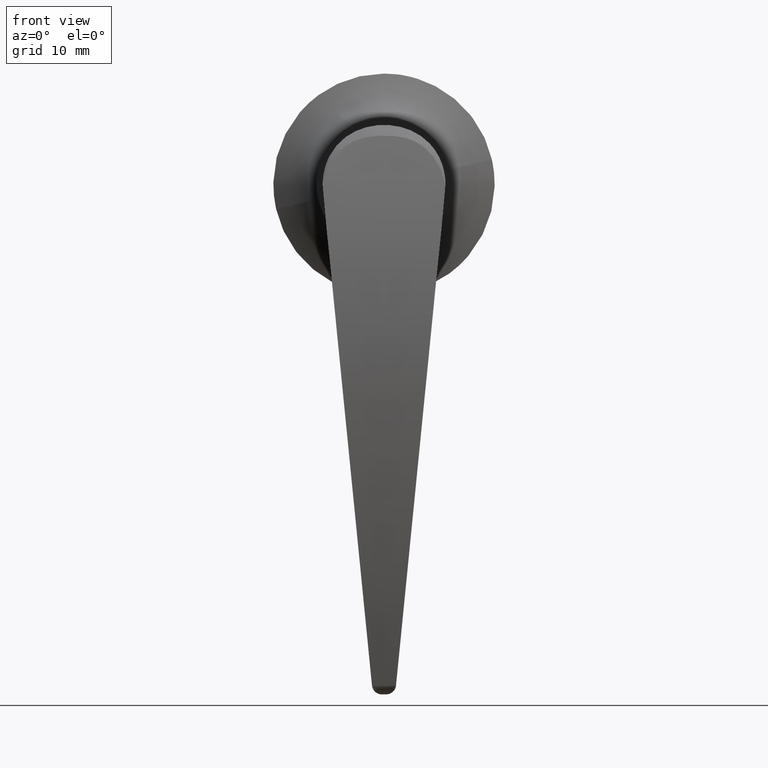
[diagram: clean part render]
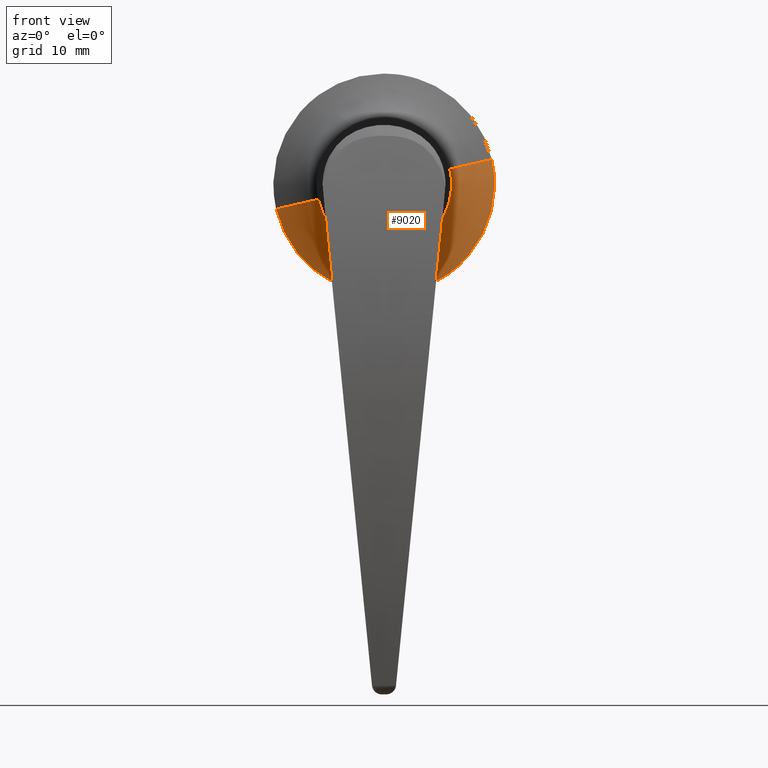
[diagram: same view with one face highlighted and labeled with its STEP entity id]
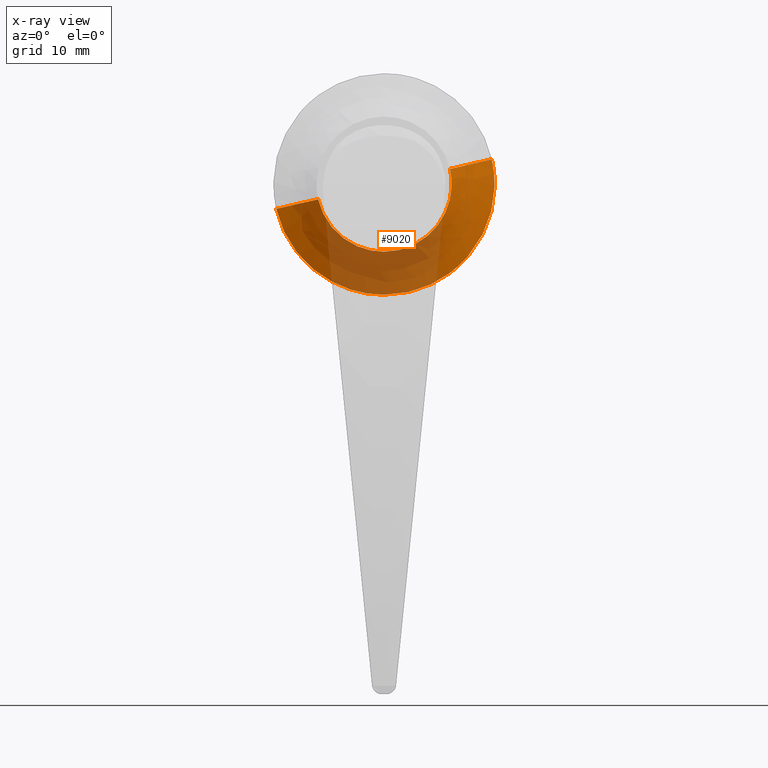
[diagram: x-ray of the same camera — body ghosted, the highlighted face saturated]
A machine part, front view. The second image highlights one B-rep face of the part: STEP entity #9020.
The next image is the same camera in x-ray: the body ghosted, the highlighted face saturated — about 43% of this face is hidden behind the body in this view.
In plain terms, the highlighted face is a freeform B-spline surface patch.
Its self-contained STEP definition (entity closure, byte-faithful):
#8740=CARTESIAN_POINT('',(5.499475657324954,17.541483709951599,-4.036873697337593));
#8741=VERTEX_POINT('',#8740);
#8796=CARTESIAN_POINT('',(5.499475657380819,-13.687309914272859,-11.690061903627051));
#8797=VERTEX_POINT('',#8796);
#8803=CARTESIAN_POINT('',(5.499475657380540,0.0,-18.0));
#8804=VERTEX_POINT('',#8803);
#8805=CARTESIAN_POINT('',(5.499475657380540,0.0,-18.0));
#8806=CARTESIAN_POINT('',(5.499475657380541,-8.298116024703120,-18.000000000000004));
#8807=CARTESIAN_POINT('',(5.499475657380819,-13.687309914272861,-11.690061903627047));
#8815=(BOUNDED_CURVE()B_SPLINE_CURVE(2,(#8805,#8806,#8807),.UNSPECIFIED.,.F.,.U.)B_SPLINE_CURVE_WITH_KNOTS((3,3),(0.500000000000000,0.636856871401656),.UNSPECIFIED.)CURVE()GEOMETRIC_REPRESENTATION_ITEM()RATIONAL_B_SPLINE_CURVE((1.0,0.839662201673721,0.854871038918356))REPRESENTATION_ITEM(''));
#8816=EDGE_CURVE('',#8804,#8797,#8815,.T.);
#8818=CARTESIAN_POINT('',(5.499475657324955,17.541483709951603,-4.036873697337593));
#8819=CARTESIAN_POINT('',(5.499475657380540,14.328108020792733,-18.000000000000011));
#8820=CARTESIAN_POINT('',(5.499475657380540,0.0,-18.0));
#8828=(BOUNDED_CURVE()B_SPLINE_CURVE(2,(#8818,#8819,#8820),.UNSPECIFIED.,.F.,.U.)B_SPLINE_CURVE_WITH_KNOTS((3,3),(0.288352912387142,0.500000000000000),.UNSPECIFIED.)CURVE()GEOMETRIC_REPRESENTATION_ITEM()RATIONAL_B_SPLINE_CURVE((0.923920098752649,0.752040013026309,1.0))REPRESENTATION_ITEM(''));
#8829=EDGE_CURVE('',#8741,#8804,#8828,.T.);
#8867=CARTESIAN_POINT('',(5.499475657324955,-17.541483709951610,4.036873697337592));
#8868=VERTEX_POINT('',#8867);
#8882=CARTESIAN_POINT('',(5.499475657380819,-13.687309914272861,-11.690061903627047));
#8883=CARTESIAN_POINT('',(5.499475657380541,-18.000000000000004,-6.640548372031732));
#8884=CARTESIAN_POINT('',(5.499475657380540,-18.0,0.0));
#8885=CARTESIAN_POINT('',(5.499475657380540,-18.000000000000004,2.044476453222080));
#8886=CARTESIAN_POINT('',(5.499475657324955,-17.541483709951610,4.036873697337592));
#8894=(BOUNDED_CURVE()B_SPLINE_CURVE(2,(#8882,#8883,#8884,#8885,#8886),.UNSPECIFIED.,.F.,.U.)B_SPLINE_CURVE_WITH_KNOTS((3,2,3),(0.636856871401656,0.750000000000000,0.788352912387142),.UNSPECIFIED.)CURVE()GEOMETRIC_REPRESENTATION_ITEM()RATIONAL_B_SPLINE_CURVE((0.854871038918356,0.867444579512827,1.0,0.955066768160239,0.923920098752649))REPRESENTATION_ITEM(''));
#8895=EDGE_CURVE('',#8797,#8868,#8894,.T.);
#8932=CARTESIAN_POINT('',(-0.368894335714087,10.480137899077784,-2.411825232443193));
#8933=CARTESIAN_POINT('',(-0.368894335714088,8.068312666634590,-12.891963131520974));
#8934=CARTESIAN_POINT('',(-0.368894335714087,-2.411825232443193,-10.480137899077784));
#8935=CARTESIAN_POINT('',(-0.368894335714088,-12.891963131520974,-8.068312666634592));
#8936=CARTESIAN_POINT('',(-0.368894335714087,-10.480137899077784,2.411825232443192));
#8937=CARTESIAN_POINT('',(3.957194078485002,13.206326934909656,-3.039211204683869));
#8938=CARTESIAN_POINT('',(3.957194078485002,10.167115730225781,-16.245538139593521));
#8939=CARTESIAN_POINT('',(3.957194078485002,-3.039211204683868,-13.206326934909656));
#8940=CARTESIAN_POINT('',(3.957194078485002,-16.245538139593521,-10.167115730225783));
#8941=CARTESIAN_POINT('',(3.957194078485002,-13.206326934909656,3.039211204683868));
#8942=CARTESIAN_POINT('',(5.651542191793545,17.947572463400530,-4.130328106860222));
#8943=CARTESIAN_POINT('',(5.651542191793546,13.817244356540298,-22.077900570260745));
#8944=CARTESIAN_POINT('',(5.651542191793545,-4.130328106860222,-17.947572463400530));
#8945=CARTESIAN_POINT('',(5.651542191793546,-22.077900570260745,-13.817244356540302));
#8946=CARTESIAN_POINT('',(5.651542191793545,-17.947572463400530,4.130328106860221));
#8954=(BOUNDED_SURFACE()B_SPLINE_SURFACE(2,2,((#8932,#8937,#8942),(#8933,#8938,#8943),(#8934,#8939,#8944),(#8935,#8940,#8945),(#8936,#8941,#8946)),.UNSPECIFIED.,.F.,.F.,.U.)B_SPLINE_SURFACE_WITH_KNOTS((3,2,3),(3,3),(0.0,30.513793446278751,61.027586892557508),(0.0,10.016396261954670),.UNSPECIFIED.)GEOMETRIC_REPRESENTATION_ITEM()RATIONAL_B_SPLINE_SURFACE(((0.940616321190755,0.889619412632560,0.940636537543718),(0.665116179208727,0.629055919347677,0.665130474328998),(0.940616321190755,0.889619412632560,0.940636537543718),(0.665116179208727,0.629055919347677,0.665130474328998),(0.940616321190755,0.889619412632560,0.940636537543718)))REPRESENTATION_ITEM('')SURFACE());
#8955=CARTESIAN_POINT('',(1.424812E-010,10.720217613739660,-2.467075489806217));
#8956=VERTEX_POINT('',#8955);
#8957=CARTESIAN_POINT('',(0.0,0.0,-11.000433044029499));
#8958=VERTEX_POINT('',#8957);
#8959=CARTESIAN_POINT('',(1.424812E-010,10.720217613739656,-2.467075489806217));
#8960=CARTESIAN_POINT('',(0.0,8.756410718260721,-11.000433044029499));
#8961=CARTESIAN_POINT('',(0.0,0.0,-11.000433044029499));
#8969=(BOUNDED_CURVE()B_SPLINE_CURVE(2,(#8959,#8960,#8961),.UNSPECIFIED.,.F.,.U.)B_SPLINE_CURVE_WITH_KNOTS((3,3),(0.288352912388818,0.500000000000000),.UNSPECIFIED.)CURVE()GEOMETRIC_REPRESENTATION_ITEM()RATIONAL_B_SPLINE_CURVE((0.923920098749927,0.752040013028273,1.0))REPRESENTATION_ITEM(''));
#8970=EDGE_CURVE('',#8956,#8958,#8969,.T.);
#8971=ORIENTED_EDGE('',*,*,#8970,.F.);
#8972=CARTESIAN_POINT('',(1.424812E-010,10.720217613739653,-2.467075489806217));
#8973=CARTESIAN_POINT('',(3.837164096794345,13.298236581747393,-3.060362644434267));
#8974=CARTESIAN_POINT('',(5.499475657324954,17.541483709951603,-4.036873697337593));
#8982=(BOUNDED_CURVE()B_SPLINE_CURVE(2,(#8972,#8973,#8974),.UNSPECIFIED.,.F.,.U.)B_SPLINE_CURVE_WITH_KNOTS((3,3),(-1.498260987067938,-0.501521783545587),.UNSPECIFIED.)CURVE()GEOMETRIC_REPRESENTATION_ITEM()RATIONAL_B_SPLINE_CURVE((0.936194844341358,0.894041808820838,0.936213222015472))REPRESENTATION_ITEM(''));
#8983=EDGE_CURVE('',#8956,#8741,#8982,.T.);
#8984=ORIENTED_EDGE('',*,*,#8983,.T.);
#8985=ORIENTED_EDGE('',*,*,#8829,.T.);
#8986=ORIENTED_EDGE('',*,*,#8816,.T.);
#8987=ORIENTED_EDGE('',*,*,#8895,.T.);
#8988=CARTESIAN_POINT('',(1.424812E-010,-10.720217613739660,2.467075489806222));
#8989=VERTEX_POINT('',#8988);
#8990=CARTESIAN_POINT('',(1.424812E-010,-10.720217613739653,2.467075489806222));
#8991=CARTESIAN_POINT('',(3.837164096794345,-13.298236581747393,3.060362644434268));
#8992=CARTESIAN_POINT('',(5.499475657324955,-17.541483709951603,4.036873697337592));
#9000=(BOUNDED_CURVE()B_SPLINE_CURVE(2,(#8990,#8991,#8992),.UNSPECIFIED.,.F.,.U.)B_SPLINE_CURVE_WITH_KNOTS((3,3),(-1.498260987067938,-0.501521783545587),.UNSPECIFIED.)CURVE()GEOMETRIC_REPRESENTATION_ITEM()RATIONAL_B_SPLINE_CURVE((0.936194844341358,0.894041808820838,0.936213222015472))REPRESENTATION_ITEM(''));
#9001=EDGE_CURVE('',#8989,#8868,#9000,.T.);
#9002=ORIENTED_EDGE('',*,*,#9001,.F.);
#9003=CARTESIAN_POINT('',(0.0,0.0,-11.000433044029499));
#9004=CARTESIAN_POINT('',(0.0,-11.000433044029501,-11.000433044029501));
#9005=CARTESIAN_POINT('',(0.0,-11.000433044029499,0.0));
#9006=CARTESIAN_POINT('',(0.0,-11.000433044029506,1.249451463044095));
#9007=CARTESIAN_POINT('',(1.424812E-010,-10.720217613739656,2.467075489806223));
#9015=(BOUNDED_CURVE()B_SPLINE_CURVE(2,(#9003,#9004,#9005,#9006,#9007),.UNSPECIFIED.,.F.,.U.)B_SPLINE_CURVE_WITH_KNOTS((3,2,3),(0.500000000000000,0.750000000000000,0.788352912388818),.UNSPECIFIED.)CURVE()GEOMETRIC_REPRESENTATION_ITEM()RATIONAL_B_SPLINE_CURVE((1.0,0.707106781186548,1.0,0.955066768158275,0.923920098749926))REPRESENTATION_ITEM(''));
#9016=EDGE_CURVE('',#8958,#8989,#9015,.T.);
#9017=ORIENTED_EDGE('',*,*,#9016,.F.);
#9018=EDGE_LOOP('',(#8971,#8984,#8985,#8986,#8987,#9002,#9017));
#9019=FACE_OUTER_BOUND('',#9018,.T.);
#9020=ADVANCED_FACE('',(#9019),#8954,.F.);